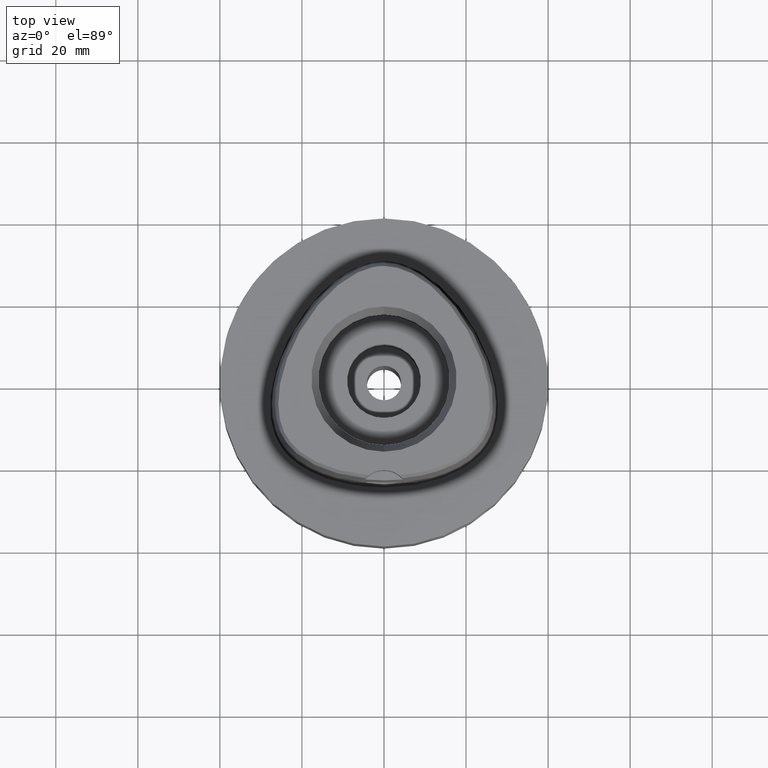
[diagram: clean part render]
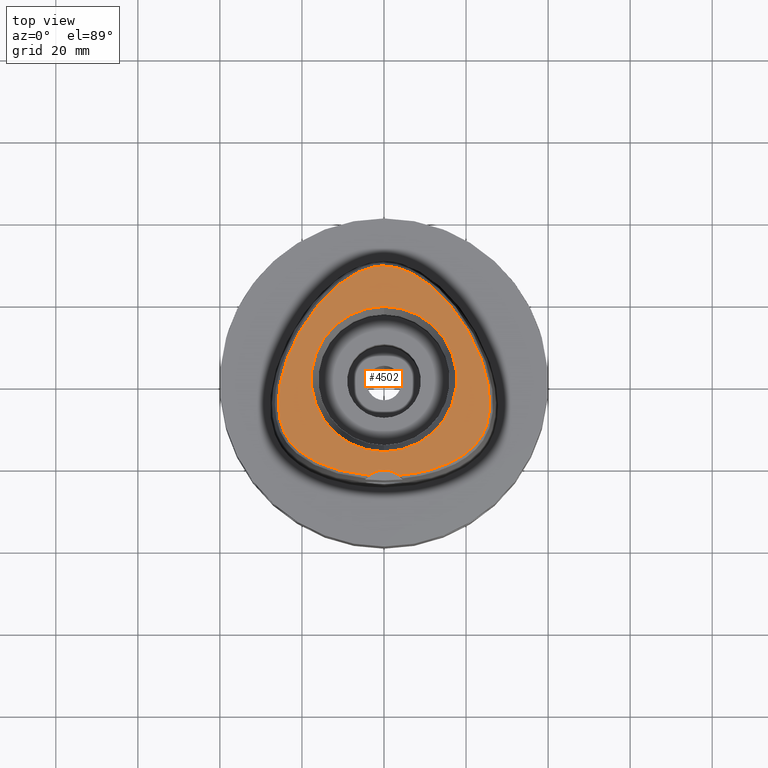
[diagram: same view with one face highlighted and labeled with its STEP entity id]
A machine part, top view. The second image highlights one B-rep face of the part: STEP entity #4502.
In plain terms, the highlighted planar face has unit normal (0, 0, 1).
Its self-contained STEP definition (entity closure, byte-faithful):
#5 = CARTESIAN_POINT ( 'NONE',  ( 24.78780591084362683, 1.407047860335286282, 48.00000000000279243 ) ) ;
#10 = CARTESIAN_POINT ( 'NONE',  ( -25.79049889473925461, -6.320436011330262005, 47.99999999999962341 ) ) ;
#35 = CARTESIAN_POINT ( 'NONE',  ( -21.64189922317243742, 9.570126786845804645, 47.99999999999956657 ) ) ;
#49 = CIRCLE ( 'NONE', #2238, 17.71487483155999954 ) ;
#64 = CARTESIAN_POINT ( 'NONE',  ( -4.489954052493704495, 26.80204639255468635, 47.99999999999969447 ) ) ;
#90 = CARTESIAN_POINT ( 'NONE',  ( -14.35357212122391779, 20.00684525407334036, 48.00000000000009948 ) ) ;
#96 = CARTESIAN_POINT ( 'NONE',  ( 7.396182376302863126, -22.99483633013867845, 48.00000000000617462 ) ) ;
#109 = CARTESIAN_POINT ( 'NONE',  ( 23.18188527997486403, 6.195157684106701979, 48.00000000000365219 ) ) ;
#121 = CARTESIAN_POINT ( 'NONE',  ( 9.079666835764285793, -22.67647771863789075, 48.00000000001163869 ) ) ;
#160 = ORIENTED_EDGE ( 'NONE', *, *, #2307, .F. ) ;
#174 = CARTESIAN_POINT ( 'NONE',  ( -18.95547945645173016, -18.80500687502222590, 48.00000000000148503 ) ) ;
#221 = CARTESIAN_POINT ( 'NONE',  ( 3.652533226355999751, -23.43985283522000174, 48.00000000000000000 ) ) ;
#289 = CARTESIAN_POINT ( 'NONE',  ( -22.45665628223753529, 7.877471279648627700, 47.99999999999675282 ) ) ;
#314 = CARTESIAN_POINT ( 'NONE',  ( -25.74147105879161757, -7.353240448490359071, 47.99999999999937472 ) ) ;
#324 = VERTEX_POINT ( 'NONE', #3494 ) ;
#375 = CARTESIAN_POINT ( 'NONE',  ( 23.81116373424040589, 4.548397580874499191, 48.00000000000945022 ) ) ;
#401 = CARTESIAN_POINT ( 'NONE',  ( 17.68852893097704992, 16.00958332232435666, 48.00000000000878231 ) ) ;
#407 = CARTESIAN_POINT ( 'NONE',  ( -24.00645943640779834, -13.59502449744141828, 48.00000000000684253 ) ) ;
#414 = CARTESIAN_POINT ( 'NONE',  ( 12.15683615293934139, -21.88711351951087636, 48.00000000000568434 ) ) ;
#426 = CARTESIAN_POINT ( 'NONE',  ( -3.652529789304999941, -23.43985019791999846, 48.00000000000000000 ) ) ;
#433 = CARTESIAN_POINT ( 'NONE',  ( -17.68810259327409895, 16.01016819644729949, 48.00000000000537881 ) ) ;
#462 = CARTESIAN_POINT ( 'NONE',  ( -25.33661149944806468, -10.07113708571049138, 48.00000000000788702 ) ) ;
#482 = CARTESIAN_POINT ( 'NONE',  ( -2.553408000957999972E-11, 27.58331912251000162, 48.00000000000000000 ) ) ;
#507 = CARTESIAN_POINT ( 'NONE',  ( 25.79052179444476067, -6.319355031380079701, 48.00000000001389822 ) ) ;
#627 = CARTESIAN_POINT ( 'NONE',  ( -10.66374418708088179, -22.30593187528124233, 48.00000000000066791 ) ) ;
#672 = CARTESIAN_POINT ( 'NONE',  ( -20.74831938584209823, 11.24670202904527194, 47.99999999999828049 ) ) ;
#696 = CARTESIAN_POINT ( 'NONE',  ( -12.14717624329195544, 22.13270362300735883, 48.00000000000206057 ) ) ;
#701 = AXIS2_PLACEMENT_3D ( 'NONE', #3341, #992, #4148 ) ;
#761 = CARTESIAN_POINT ( 'NONE',  ( 4.491298471527296776, 26.80158405531928878, 48.00000000000722622 ) ) ;
#793 = CARTESIAN_POINT ( 'NONE',  ( 10.03889926273917865, 23.82643791975507952, 48.00000000000724754 ) ) ;
#798 = CARTESIAN_POINT ( 'NONE',  ( -25.72853642077281577, -4.045150056829563745, 47.99999999999813838 ) ) ;
#814 = CARTESIAN_POINT ( 'NONE',  ( 2.140583849880724809, 27.40603513869769614, 48.00000000000714095 ) ) ;
#848 = CARTESIAN_POINT ( 'NONE',  ( -1.406513445700838583, 27.50987728443821823, 48.00000000000198952 ) ) ;
#886 = CARTESIAN_POINT ( 'NONE',  ( 21.18145661121820567, -17.09850743469524659, 48.00000000000414246 ) ) ;
#897 = CARTESIAN_POINT ( 'NONE',  ( 25.33687583872577420, -10.06999584063170161, 48.00000000001205080 ) ) ;
#964 = CARTESIAN_POINT ( 'NONE',  ( -22.82072892860655244, -15.36398915678368482, 48.00000000000203926 ) ) ;
#992 = DIRECTION ( 'NONE',  ( 0.0000000000000000000, 0.0000000000000000000, 1.000000000000000000 ) ) ;
#1012 = CARTESIAN_POINT ( 'NONE',  ( -3.692743038414450396, -23.43666978757088160, 48.00000000000320455 ) ) ;
#1082 = CARTESIAN_POINT ( 'NONE',  ( -7.110865803014789321, 25.66222324296720814, 48.00000000000715517 ) ) ;
#1088 = FACE_BOUND ( 'NONE', #4302, .T. ) ;
#1166 = CARTESIAN_POINT ( 'NONE',  ( 25.60516200877346549, -2.794192459352598856, 48.00000000000290612 ) ) ;
#1171 = CARTESIAN_POINT ( 'NONE',  ( -24.34597371488579398, 2.947766319392805645, 48.00000000000387246 ) ) ;
#1194 = CARTESIAN_POINT ( 'NONE',  ( 25.78811069501291087, -5.218135357747325287, 48.00000000001058709 ) ) ;
#1201 = CARTESIAN_POINT ( 'NONE',  ( -16.58720414441159008, 17.44590650687707267, 47.99999999999524647 ) ) ;
#1208 = CARTESIAN_POINT ( 'NONE',  ( 23.26225374360306475, -14.77782433120870387, 48.00000000000495248 ) ) ;
#1233 = CARTESIAN_POINT ( 'NONE',  ( 24.32795549673482327, -12.97211154200424410, 48.00000000001075762 ) ) ;
#1259 = CARTESIAN_POINT ( 'NONE',  ( -25.64644810599474312, -8.319642749356717104, 48.00000000000510880 ) ) ;
#1267 = CARTESIAN_POINT ( 'NONE',  ( 3.652533226355999751, -23.43985283522000174, 48.00000000000000000 ) ) ;
#1415 = CARTESIAN_POINT ( 'NONE',  ( -17.07251346402878767, -19.90534499102270516, 47.99999999999663913 ) ) ;
#1560 = CARTESIAN_POINT ( 'NONE',  ( 25.14129527416686471, -0.06715740301638856158, 48.00000000000206057 ) ) ;
#1565 = CARTESIAN_POINT ( 'NONE',  ( -25.51017841222589411, -9.223923978199366047, 48.00000000000412115 ) ) ;
#1591 = CARTESIAN_POINT ( 'NONE',  ( -25.14146662215856409, -0.06794041304865069963, 47.99999999999555911 ) ) ;
#1602 = CARTESIAN_POINT ( 'NONE',  ( 24.89096213678511660, -11.60991207239676370, 48.00000000000071054 ) ) ;
#1624 = CARTESIAN_POINT ( 'NONE',  ( -0.2321695341564807835, 27.58331912251578899, 48.00000000000204636 ) ) ;
#1631 = CARTESIAN_POINT ( 'NONE',  ( 13.54089058450235683, -21.43147460489013767, 48.00000000000199663 ) ) ;
#1650 = CARTESIAN_POINT ( 'NONE',  ( -0.6921675427513921397, 27.57027402750421174, 48.00000000000103739 ) ) ;
#1655 = CARTESIAN_POINT ( 'NONE',  ( 24.62320007856554938, -12.31148373401188323, 48.00000000000454037 ) ) ;
#1665 = CARTESIAN_POINT ( 'NONE',  ( 14.35433142683409713, 20.00604447574906075, 48.00000000000262901 ) ) ;
#1680 = CARTESIAN_POINT ( 'NONE',  ( 18.95779336836848827, -18.80349047535008111, 47.99999999999913314 ) ) ;
#1777 = AXIS2_PLACEMENT_3D ( 'NONE', #2928, #4537, #3690 ) ;
#1874 = CARTESIAN_POINT ( 'NONE',  ( -13.24182048140708545, 21.12501160990132121, 48.00000000000055422 ) ) ;
#1935 = CARTESIAN_POINT ( 'NONE',  ( 24.34579675531568910, 2.948329282943710439, 48.00000000000659384 ) ) ;
#1959 = CARTESIAN_POINT ( 'NONE',  ( 18.76051936065697134, 14.48366014233289256, 48.00000000001217160 ) ) ;
#1964 = CARTESIAN_POINT ( 'NONE',  ( -15.47246034441827334, 18.77924032487483785, 48.00000000000285638 ) ) ;
#1983 = CARTESIAN_POINT ( 'NONE',  ( 22.45659887780548303, 7.877591736060463923, 48.00000000000958522 ) ) ;
#1990 = DIRECTION ( 'NONE',  ( 0.0000000000000000000, 0.0000000000000000000, 1.000000000000000000 ) ) ;
#1998 = CARTESIAN_POINT ( 'NONE',  ( 22.82172265263834987, -15.36274108902385471, 48.00000000000625988 ) ) ;
#2012 = CARTESIAN_POINT ( 'NONE',  ( 0.6937438505403781264, 27.57019898701131666, 48.00000000000195399 ) ) ;
#2019 = CARTESIAN_POINT ( 'NONE',  ( 0.0000000000000000000, 0.0000000000000000000, 48.00000000000000000 ) ) ;
#2135 = EDGE_CURVE ( 'NONE', #4618, #3496, #2596, .T. ) ;
#2166 = EDGE_LOOP ( 'NONE', ( #3477, #4200, #2945 ) ) ;
#2187 = CARTESIAN_POINT ( 'NONE',  ( -13.53666233734541890, -21.43297585322269327, 47.99999999999445066 ) ) ;
#2209 = CARTESIAN_POINT ( 'NONE',  ( -20.51077223929895155, -17.67263102127343188, 48.00000000000377298 ) ) ;
#2232 = CARTESIAN_POINT ( 'NONE',  ( -8.052265342578870388, 25.13651235630327818, 48.00000000000115818 ) ) ;
#2238 = AXIS2_PLACEMENT_3D ( 'NONE', #2491, #2921, #2540 ) ;
#2259 = CARTESIAN_POINT ( 'NONE',  ( -6.203520479232357054, 26.11107304852705724, 48.00000000000107292 ) ) ;
#2307 = EDGE_CURVE ( 'NONE', #324, #3401, #49, .T. ) ;
#2319 = CARTESIAN_POINT ( 'NONE',  ( 15.47311546589761733, 18.77848662925463685, 48.00000000000986233 ) ) ;
#2342 = CARTESIAN_POINT ( 'NONE',  ( 12.14811716929328611, 22.13187320258732527, 47.99999999999837286 ) ) ;
#2343 = CARTESIAN_POINT ( 'NONE',  ( -2.553408000957999972E-11, 27.58331912251000162, 48.00000000000000000 ) ) ;
#2347 = CARTESIAN_POINT ( 'NONE',  ( -24.62272929601941485, -12.31262433038680726, 47.99999999999406697 ) ) ;
#2364 = CARTESIAN_POINT ( 'NONE',  ( 16.58774972841635886, 17.44522137221847302, 48.00000000000755307 ) ) ;
#2384 = CARTESIAN_POINT ( 'NONE',  ( 0.0000000000000000000, -17.71487483155999954, 48.00000000000000000 ) ) ;
#2450 = CARTESIAN_POINT ( 'NONE',  ( 25.51037851176892701, -9.222789616918259270, 48.00000000000570566 ) ) ;
#2454 = B_SPLINE_CURVE_WITH_KNOTS ( 'NONE', 3,
 ( #4553, #1012, #4904, #2588, #2943, #2562, #627, #3662, #2187, #3355, #4924, #1415, #2966, #174, #4141, #2209, #3284, #4848, #4459, #964, #2521, #4070, #407, #3197, #2347, #4574, #4700, #462, #1565, #1259, #314, #10, #2807, #798, #3924, #4185, #1591, #4729, #1171, #2751, #3950, #289, #35, #672, #2630, #3900, #433, #1201, #1964, #90, #1874, #696, #3572, #3111, #3141, #2232, #1082, #2259, #3811, #64, #3515, #4671, #3404, #848, #1650, #1624, #2724 ),
 .UNSPECIFIED., .F., .F.,
 ( 4, 1, 1, 1, 1, 1, 1, 1, 1, 1, 1, 1, 1, 1, 1, 1, 1, 1, 1, 1, 1, 1, 1, 1, 1, 1, 1, 1, 1, 1, 1, 1, 1, 1, 1, 1, 1, 1, 1, 1, 1, 1, 1, 1, 1, 1, 1, 1, 1, 1, 1, 1, 1, 1, 1, 1, 1, 1, 1, 1, 1, 1, 1, 1, 4 ),
 ( 0.0000000000000000000, 0.001025211071800091744, 0.01688195375320000746, 0.03273869643469995427, 0.04859543911610009204, 0.06445218179750000775, 0.08030892447889992347, 0.09616566716030006123, 0.1120224098416999770, 0.1278791525231999238, 0.1437358952045000304, 0.1595926378859000572, 0.1754493805672999729, 0.1913061232486999996, 0.2071628659301000264, 0.2230196086114999421, 0.2388763512929999999, 0.2547330939744000267, 0.2705898366558000534, 0.2864465793371999691, 0.3023033220184999648, 0.3181600646999001025, 0.3340168073814000493, 0.3498735500627999651, 0.3657302927441999918, 0.3815870354256000185, 0.3974437781070000453, 0.4133005207884000720, 0.4291572634697999877, 0.4450140061513000456, 0.4608707488326000412, 0.4767274915139999569, 0.4925842341953999837, 0.5084409768768000104, 0.5242977195582000371, 0.5401544622396999840, 0.5560112049211000107, 0.5718679476025000374, 0.5877246902838999532, 0.6035814329652000598, 0.6194381756466000866, 0.6352949183280000023, 0.6511516610095000601, 0.6670084036908999758, 0.6828651463723000026, 0.6987218890537000293, 0.7145786317350999450, 0.7304353744164999718, 0.7462921170980000296, 0.7621488597793000253, 0.7780056024607000520, 0.7938623451421000787, 0.8097190878234999944, 0.8255758305049000212, 0.8414325731862999369, 0.8572893158677999947, 0.8731460585492000215, 0.8890028012306000482, 0.9048595439119599959, 0.9207162865933600226, 0.9365730292747700414, 0.9524297719561699571, 0.9682865146375799759, 0.9841432573189800026, 1.000000000000000000 ),
 .UNSPECIFIED. ) ;
#2491 = CARTESIAN_POINT ( 'NONE',  ( 0.0000000000000000000, 0.0000000000000000000, 48.00000000000000000 ) ) ;
#2521 = CARTESIAN_POINT ( 'NONE',  ( -23.26140416530358479, -14.77902311537905256, 47.99999999999486988 ) ) ;
#2540 = DIRECTION ( 'NONE',  ( 0.0000000000000000000, 1.000000000000000000, 0.0000000000000000000 ) ) ;
#2562 = CARTESIAN_POINT ( 'NONE',  ( -9.073991136863689633, -22.67767904108861288, 47.99999999999511857 ) ) ;
#2588 = CARTESIAN_POINT ( 'NONE',  ( -5.621443921966347013, -23.25305008129430817, 48.00000000000743228 ) ) ;
#2596 = B_SPLINE_CURVE_WITH_KNOTS ( 'NONE', 3,
 ( #482, #3869, #2012, #2745, #814, #2798, #3508, #761, #3566, #3191, #3595, #4663, #4751, #793, #3895, #2342, #3486, #1665, #2319, #2364, #401, #1959, #4357, #3918, #2719, #1983, #109, #375, #1935, #5, #1560, #3107, #1166, #3136, #1194, #507, #2827, #4390, #2450, #897, #4003, #1602, #1655, #1233, #3606, #4291, #1208, #1998, #4820, #2781, #886, #2756, #3581, #1680, #3178, #4766, #4708, #3906, #1631, #414, #2844, #121, #96, #3552, #3256, #3202, #1267 ),
 .UNSPECIFIED., .F., .F.,
 ( 4, 1, 1, 1, 1, 1, 1, 1, 1, 1, 1, 1, 1, 1, 1, 1, 1, 1, 1, 1, 1, 1, 1, 1, 1, 1, 1, 1, 1, 1, 1, 1, 1, 1, 1, 1, 1, 1, 1, 1, 1, 1, 1, 1, 1, 1, 1, 1, 1, 1, 1, 1, 1, 1, 1, 1, 1, 1, 1, 1, 1, 1, 1, 1, 4 ),
 ( 0.0000000000000000000, 0.01585579672639991777, 0.03171159345210006197, 0.04756739017779998413, 0.06342318690360004840, 0.07927898362929997056, 0.09513478035499989272, 0.1109905770807000369, 0.1268463738063999591, 0.1427021705320999923, 0.1585579672578999455, 0.1744137639835999787, 0.1902695607093000119, 0.2061253574349999340, 0.2219811541607000782, 0.2378369508864000004, 0.2536927476120999225, 0.2695485443380000179, 0.2854043410636999401, 0.3012601377893999732, 0.3171159345151000064, 0.3329717312407999286, 0.3488275279665000728, 0.3646833246923000260, 0.3805391214179999482, 0.3963949181436999813, 0.4122507148694000145, 0.4281065115951000477, 0.4439623083207999699, 0.4598181050465000030, 0.4756739017723000673, 0.4915296984979999895, 0.5073854952237000226, 0.5232412919494000558, 0.5390970886750999780, 0.5549528854007999001, 0.5708086821265999644, 0.5866644788522999976, 0.6025202755780000308, 0.6183760723036999529, 0.6342318690293999861, 0.6500876657551999394, 0.6659434624808999725, 0.6817992592067000368, 0.6976550559323999590, 0.7135108526580999921, 0.7293666493838000253, 0.7452224461095000585, 0.7610782428351999807, 0.7769340395610000449, 0.7927898362866999671, 0.8086456330124000003, 0.8245014297380999224, 0.8403572264637999556, 0.8562130231894999888, 0.8720688199152000220, 0.8879246166409999752, 0.9037804133667199924, 0.9196362100924300176, 0.9354920068181400428, 0.9513478035438499569, 0.9672036002695799661, 0.9830593969952899913, 0.9989151937210170029, 1.000000000000000000 ),
 .UNSPECIFIED. ) ;
#2630 = CARTESIAN_POINT ( 'NONE',  ( -19.78446217835622178, 12.89029827906694159, 48.00000000000204636 ) ) ;
#2715 = ORIENTED_EDGE ( 'NONE', *, *, #3615, .F. ) ;
#2719 = CARTESIAN_POINT ( 'NONE',  ( 21.64191216433315290, 9.570096010441918821, 48.00000000000537881 ) ) ;
#2724 = CARTESIAN_POINT ( 'NONE',  ( -2.553408000957999972E-11, 27.58331912251000162, 48.00000000000000000 ) ) ;
#2745 = CARTESIAN_POINT ( 'NONE',  ( 1.407937999592453693, 27.50970958195355109, 48.00000000000557066 ) ) ;
#2751 = CARTESIAN_POINT ( 'NONE',  ( -23.81131852265860971, 4.547972304024106016, 47.99999999999901945 ) ) ;
#2756 = CARTESIAN_POINT ( 'NONE',  ( 20.51253914625319652, -17.67119446946025008, 48.00000000000141398 ) ) ;
#2781 = CARTESIAN_POINT ( 'NONE',  ( 21.78596494080868595, -16.52262878100079035, 47.99999999999937472 ) ) ;
#2798 = CARTESIAN_POINT ( 'NONE',  ( 2.897393261679487075, 27.25600202852740139, 48.00000000000391509 ) ) ;
#2807 = CARTESIAN_POINT ( 'NONE',  ( -25.78814000082494218, -5.219183132163482064, 48.00000000000046896 ) ) ;
#2822 = CIRCLE ( 'NONE', #4958, 17.71487483155999954 ) ;
#2827 = CARTESIAN_POINT ( 'NONE',  ( 25.74155027847965727, -7.352132003089358214, 48.00000000000891731 ) ) ;
#2844 = CARTESIAN_POINT ( 'NONE',  ( 10.66892483386896906, -22.30459704282066014, 48.00000000001214318 ) ) ;
#2921 = DIRECTION ( 'NONE',  ( 0.0000000000000000000, 0.0000000000000000000, 1.000000000000000000 ) ) ;
#2928 = CARTESIAN_POINT ( 'NONE',  ( 0.0000000000000000000, 0.0000000000000000000, 48.00000000000000000 ) ) ;
#2943 = CARTESIAN_POINT ( 'NONE',  ( -7.390055773640993309, -22.99586658607954348, 48.00000000000031974 ) ) ;
#2945 = ORIENTED_EDGE ( 'NONE', *, *, #5029, .F. ) ;
#2966 = CARTESIAN_POINT ( 'NONE',  ( -18.05758772860126982, -19.36077714811224837, 47.99999999999860023 ) ) ;
#3107 = CARTESIAN_POINT ( 'NONE',  ( 25.41171405094581104, -1.468769615953087859, 48.00000000000631672 ) ) ;
#3111 = CARTESIAN_POINT ( 'NONE',  ( -10.03780479163956940, 23.82723751530772205, 48.00000000000204636 ) ) ;
#3136 = CARTESIAN_POINT ( 'NONE',  ( 25.72845965679403335, -4.044145215521443681, 48.00000000000860467 ) ) ;
#3141 = CARTESIAN_POINT ( 'NONE',  ( -9.027913645276136378, 24.52726119145469852, 47.99999999999679545 ) ) ;
#3155 = CIRCLE ( 'NONE', #701, 6.000000000000002665 ) ;
#3178 = CARTESIAN_POINT ( 'NONE',  ( 18.06021793803086339, -19.35923481219241893, 48.00000000000162714 ) ) ;
#3191 = CARTESIAN_POINT ( 'NONE',  ( 6.204805495149109618, 26.11047595223759998, 48.00000000000870415 ) ) ;
#3197 = CARTESIAN_POINT ( 'NONE',  ( -24.32740975879317347, -12.97324844465150306, 47.99999999999769784 ) ) ;
#3202 = CARTESIAN_POINT ( 'NONE',  ( 3.695072017992977020, -23.43648746218491041, 48.00000000000652989 ) ) ;
#3256 = CARTESIAN_POINT ( 'NONE',  ( 4.358863301034097582, -23.38302754646496595, 48.00000000000419220 ) ) ;
#3284 = CARTESIAN_POINT ( 'NONE',  ( -21.17991838302038587, -17.09989881137973811, 48.00000000000488853 ) ) ;
#3341 = CARTESIAN_POINT ( 'NONE',  ( 0.0000000000000000000, -28.19999999999999929, 48.00000000000000000 ) ) ;
#3355 = CARTESIAN_POINT ( 'NONE',  ( -14.81597509389257716, -20.94671102737079238, 47.99999999999570832 ) ) ;
#3401 = VERTEX_POINT ( 'NONE', #2384 ) ;
#3404 = CARTESIAN_POINT ( 'NONE',  ( -2.139154069217195975, 27.40627708267050622, 48.00000000000576961 ) ) ;
#3477 = ORIENTED_EDGE ( 'NONE', *, *, #2135, .F. ) ;
#3486 = CARTESIAN_POINT ( 'NONE',  ( 13.24267791555583962, 21.12418368643657374, 47.99999999999900524 ) ) ;
#3494 = CARTESIAN_POINT ( 'NONE',  ( 0.0000000000000000000, 17.71487483155999954, 48.00000000000000000 ) ) ;
#3496 = VERTEX_POINT ( 'NONE', #221 ) ;
#3508 = CARTESIAN_POINT ( 'NONE',  ( 3.680297990135886987, 27.05591354499954804, 48.00000000000180478 ) ) ;
#3515 = CARTESIAN_POINT ( 'NONE',  ( -3.678923649486800063, 27.05630543830637436, 47.99999999999353406 ) ) ;
#3539 = DIRECTION ( 'NONE',  ( 0.0000000000000000000, -1.000000000000000000, 0.0000000000000000000 ) ) ;
#3552 = CARTESIAN_POINT ( 'NONE',  ( 5.628119991152567003, -23.25222728396737182, 48.00000000001020339 ) ) ;
#3566 = CARTESIAN_POINT ( 'NONE',  ( 5.331982176209097091, 26.48833275828236467, 48.00000000000632383 ) ) ;
#3572 = CARTESIAN_POINT ( 'NONE',  ( -11.07816725942328873, 23.03133635782734601, 48.00000000000068212 ) ) ;
#3579 = EDGE_CURVE ( 'NONE', #4727, #4618, #2454, .T. ) ;
#3581 = CARTESIAN_POINT ( 'NONE',  ( 19.77345709183304834, -18.23990985539925092, 48.00000000000408562 ) ) ;
#3595 = CARTESIAN_POINT ( 'NONE',  ( 7.112111422624608714, 25.66156608519080251, 48.00000000000499512 ) ) ;
#3606 = CARTESIAN_POINT ( 'NONE',  ( 24.00708073425258249, -13.59389763842810517, 48.00000000001199396 ) ) ;
#3615 = EDGE_CURVE ( 'NONE', #3401, #324, #2822, .T. ) ;
#3662 = CARTESIAN_POINT ( 'NONE',  ( -12.15213727002863919, -21.88854758767212516, 48.00000000000374456 ) ) ;
#3690 = DIRECTION ( 'NONE',  ( 1.000000000000000000, 0.0000000000000000000, 0.0000000000000000000 ) ) ;
#3718 = FACE_OUTER_BOUND ( 'NONE', #2166, .T. ) ;
#3811 = CARTESIAN_POINT ( 'NONE',  ( -5.330667503235671845, 26.48886318459073763, 47.99999999999975842 ) ) ;
#3869 = CARTESIAN_POINT ( 'NONE',  ( 0.2325907962420834807, 27.58331912251579610, 48.00000000000261480 ) ) ;
#3895 = CARTESIAN_POINT ( 'NONE',  ( 11.07918744941152411, 23.03051546724890031, 48.00000000000051159 ) ) ;
#3900 = CARTESIAN_POINT ( 'NONE',  ( -18.76020591298007645, 14.48413071376656269, 48.00000000000513722 ) ) ;
#3906 = CARTESIAN_POINT ( 'NONE',  ( 14.81975810291059936, -20.94516920634610813, 48.00000000000961364 ) ) ;
#3918 = CARTESIAN_POINT ( 'NONE',  ( 20.74842146925016095, 11.24651447313957497, 48.00000000000633094 ) ) ;
#3924 = CARTESIAN_POINT ( 'NONE',  ( -25.60527911802536849, -2.795135548250025970, 48.00000000000117950 ) ) ;
#3950 = CARTESIAN_POINT ( 'NONE',  ( -23.18199738826959333, 6.194888181193127785, 47.99999999999679545 ) ) ;
#4003 = CARTESIAN_POINT ( 'NONE',  ( 25.12949508357849737, -10.86427360166779188, 48.00000000000223821 ) ) ;
#4070 = CARTESIAN_POINT ( 'NONE',  ( -23.65469623604861837, -14.19111717468389067, 47.99999999999667466 ) ) ;
#4123 = PLANE ( 'NONE',  #1777 ) ;
#4141 = CARTESIAN_POINT ( 'NONE',  ( -19.77143225162136631, -18.24138896764002027, 48.00000000000422062 ) ) ;
#4148 = DIRECTION ( 'NONE',  ( 0.6087555377260667200, 0.7933578607966567109, 0.0000000000000000000 ) ) ;
#4185 = CARTESIAN_POINT ( 'NONE',  ( -25.41186334294958371, -1.469639852780305622, 48.00000000000522249 ) ) ;
#4200 = ORIENTED_EDGE ( 'NONE', *, *, #3579, .F. ) ;
#4291 = CARTESIAN_POINT ( 'NONE',  ( 23.65541542674958464, -14.18997106324505708, 48.00000000000796518 ) ) ;
#4302 = EDGE_LOOP ( 'NONE', ( #2715, #160 ) ) ;
#4357 = CARTESIAN_POINT ( 'NONE',  ( 19.78466709480088070, 12.88995995782422632, 48.00000000000296296 ) ) ;
#4390 = CARTESIAN_POINT ( 'NONE',  ( 25.64658655007682597, -8.318518488026960256, 48.00000000000687805 ) ) ;
#4459 = CARTESIAN_POINT ( 'NONE',  ( -22.32985285487829685, -15.94550431090910969, 48.00000000000362377 ) ) ;
#4502 = ADVANCED_FACE ( 'NONE', ( #3718, #1088 ), #4123, .T. ) ;
#4537 = DIRECTION ( 'NONE',  ( 0.0000000000000000000, 0.0000000000000000000, 1.000000000000000000 ) ) ;
#4553 = CARTESIAN_POINT ( 'NONE',  ( -3.652529789304999941, -23.43985019791999846, 48.00000000000000000 ) ) ;
#4574 = CARTESIAN_POINT ( 'NONE',  ( -24.89056289417309031, -11.61105474084479816, 48.00000000000196820 ) ) ;
#4618 = VERTEX_POINT ( 'NONE', #2343 ) ;
#4663 = CARTESIAN_POINT ( 'NONE',  ( 8.053467330374399324, 25.13580020531924930, 48.00000000000020606 ) ) ;
#4671 = CARTESIAN_POINT ( 'NONE',  ( -2.895995683504863027, 27.25632069045796513, 47.99999999999946709 ) ) ;
#4700 = CARTESIAN_POINT ( 'NONE',  ( -25.12916461511647270, -10.86541650940394099, 47.99999999999834444 ) ) ;
#4708 = CARTESIAN_POINT ( 'NONE',  ( 15.99678577414531411, -20.43406366493285731, 48.00000000000756017 ) ) ;
#4727 = VERTEX_POINT ( 'NONE', #426 ) ;
#4729 = CARTESIAN_POINT ( 'NONE',  ( -24.78798701905802560, 1.406367702425433741, 47.99999999999892708 ) ) ;
#4751 = CARTESIAN_POINT ( 'NONE',  ( 9.029067995419838510, 24.52649931750082857, 48.00000000000871125 ) ) ;
#4766 = CARTESIAN_POINT ( 'NONE',  ( 17.07549476912370068, -19.90378693825158152, 48.00000000000994049 ) ) ;
#4820 = CARTESIAN_POINT ( 'NONE',  ( 22.33100613406638857, -15.94420923685268754, 48.00000000000681410 ) ) ;
#4848 = CARTESIAN_POINT ( 'NONE',  ( -21.78463111685805842, -16.52397191851061464, 47.99999999999982947 ) ) ;
#4904 = CARTESIAN_POINT ( 'NONE',  ( -4.354443962178129901, -23.38344539136132383, 48.00000000000196110 ) ) ;
#4924 = CARTESIAN_POINT ( 'NONE',  ( -15.99341638177111058, -20.43562447749080846, 47.99999999999745626 ) ) ;
#4958 = AXIS2_PLACEMENT_3D ( 'NONE', #2019, #1990, #3539 ) ;
#5029 = EDGE_CURVE ( 'NONE', #3496, #4727, #3155, .T. ) ;